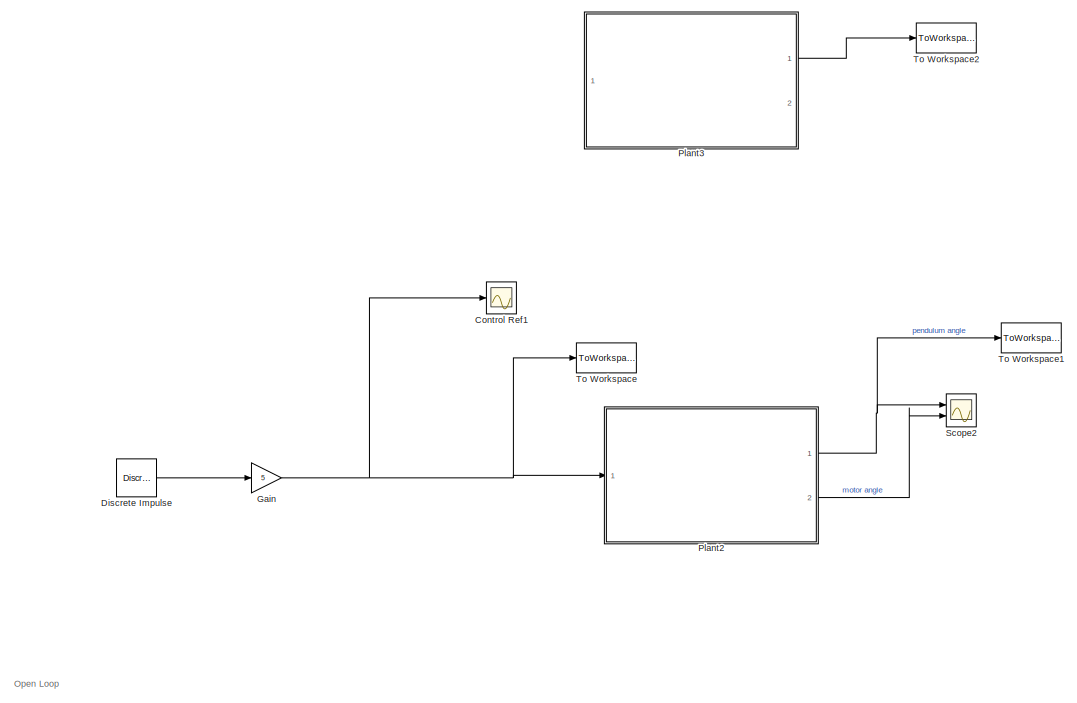
[diagram: root canvas - part 1/4, top center region]
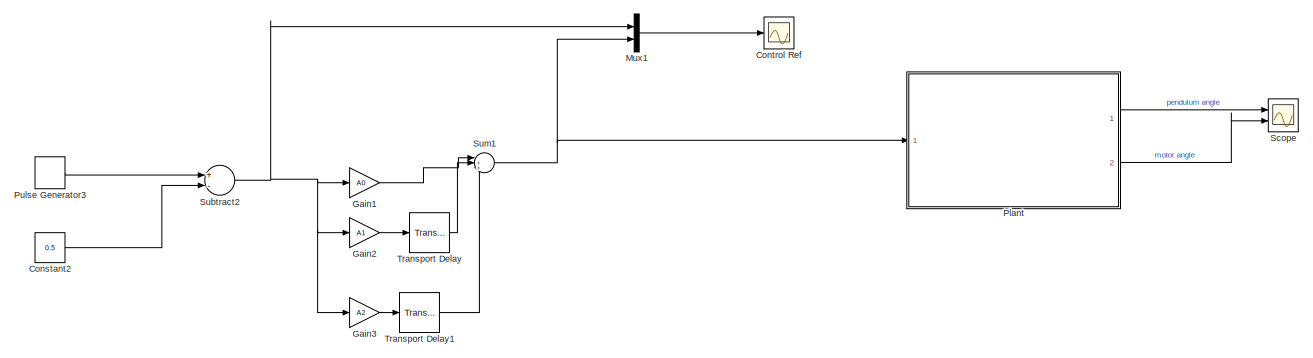
[diagram: root canvas - part 2/4, full width, middle band]
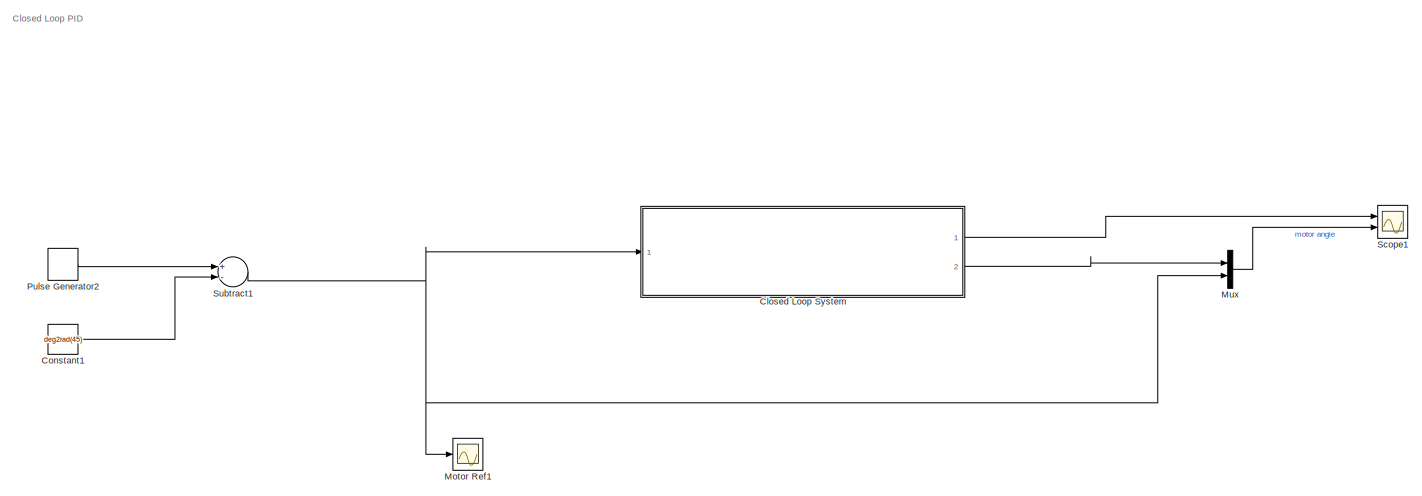
[diagram: root canvas - part 3/4, full width, middle band]
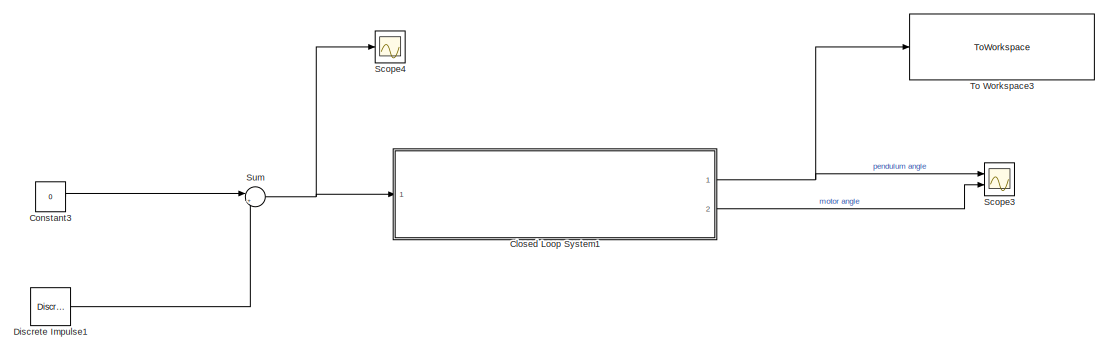
[diagram: root canvas - part 4/4, bottom center region]
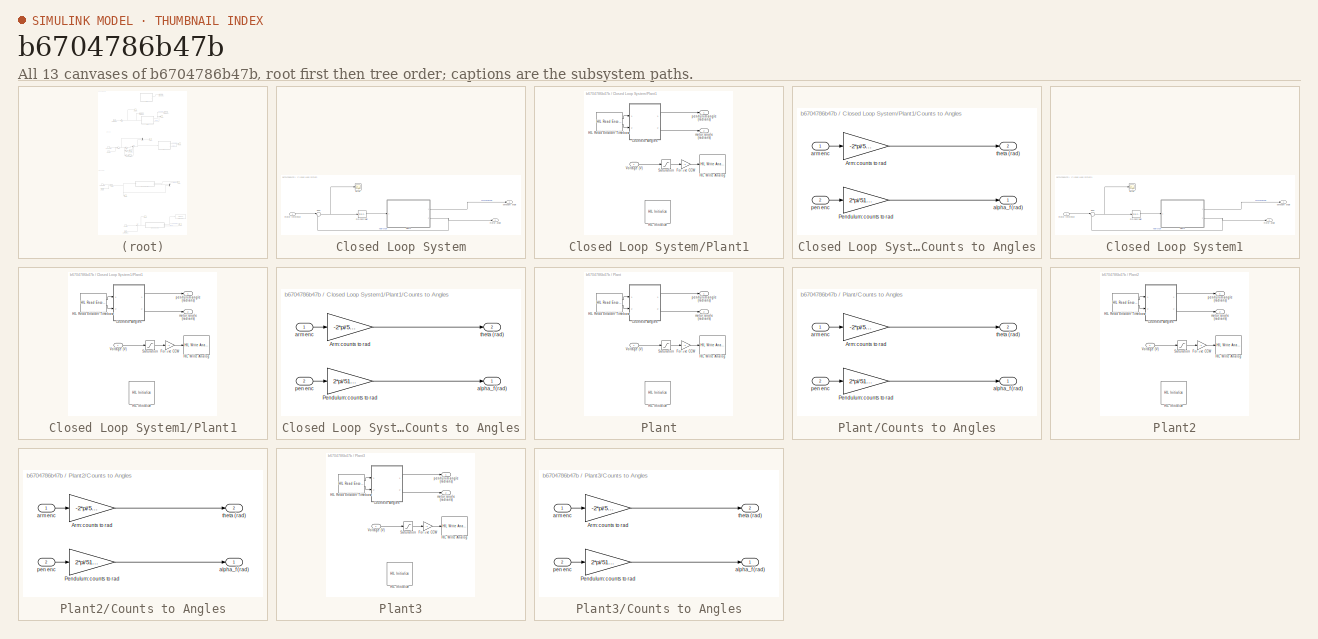
[diagram: thumbnail index - all 13 canvases of the model, root first then tree order]
MODEL slx_b6704786b47b
KIND model
CONFIG AbsTol = auto
CONFIG EnableMultiTasking = on
CONFIG FixedStep = 0.002
CONFIG MaxStep = auto
CONFIG MinStep = auto
CONFIG RelTol = 1e-3
CONFIG SampleTimeConstraint = Unconstrained
CONFIG Solver = ode4
CONFIG SolverName = ode4
CONFIG StartTime = 0.0
CONFIG StopTime = T
BLOCK [SubSystem] Closed Loop System
  Commented = on
  Ports = [1, 2]
  RequestExecContextInheritance = off
BLOCK [Reference] Closed Loop System/PID Controller  REF=simulink/Continuous/PID Controller
  Ports = [1, 1]
  SourceBlock = simulink/Continuous/PID Controller
  SourceProductBaseCode = SL
  SourceProductName = Simulink
  SourceType = PID 1dof
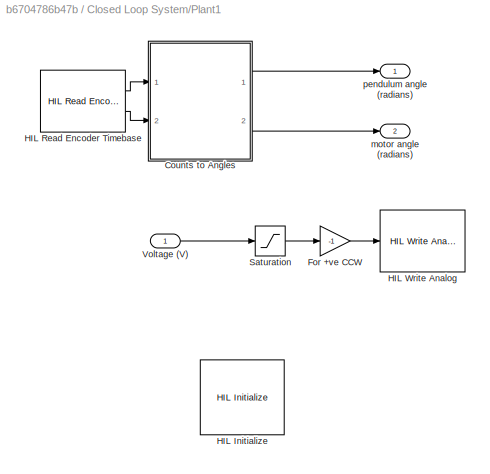
BLOCK [SubSystem] Closed Loop System/Plant1
  Ports = [1, 2]
  RequestExecContextInheritance = off
BLOCK [SubSystem] Closed Loop System/Plant1/Counts to Angles
  Ports = [2, 2]
  RequestExecContextInheritance = off
BLOCK [Gain] Closed Loop System/Plant1/Counts to Angles/Arm: counts to rad
  Gain = -2*pi/512/4
  OutDataTypeStr = Inherit: Inherit via internal rule
  ParamDataTypeStr = Inherit: Inherit via internal rule
  SaturateOnIntegerOverflow = off
BLOCK [Gain] Closed Loop System/Plant1/Counts to Angles/Pendulum: counts to rad
  Gain = 2*pi/512/4
  OutDataTypeStr = Inherit: Inherit via internal rule
  ParamDataTypeStr = Inherit: Inherit via internal rule
  SaturateOnIntegerOverflow = off
BLOCK [Outport] Closed Loop System/Plant1/Counts to Angles/alpha_f (rad)
  IconDisplay = Port number
BLOCK [Inport] Closed Loop System/Plant1/Counts to Angles/arm enc
  IconDisplay = Port number
BLOCK [Inport] Closed Loop System/Plant1/Counts to Angles/pen enc
  IconDisplay = Port number
  Port = 2
BLOCK [Outport] Closed Loop System/Plant1/Counts to Angles/theta (rad)
  IconDisplay = Port number
  Port = 2
BLOCK [Gain] Closed Loop System/Plant1/For +ve CCW
  Gain = -1
  OutDataTypeStr = Inherit: Inherit via internal rule
  ParamDataTypeStr = Inherit: Inherit via internal rule
  SaturateOnIntegerOverflow = off
BLOCK [Reference] Closed Loop System/Plant1/HIL Initialize  REF=quarc_library/Data Acquisition/Generic/Configuration/HIL Initialize
  AttributesFormatString = %<object_name> (%<board_type>-%<board_number>)
  Ports = []
  SourceBlock = quarc_library/Data Acquisition/Generic/Configuration/HIL Initialize
  SourceProductName = QUARC Targets
  SourceType = HIL Initialize
  UserDataPersistent = on
BLOCK [Reference] Closed Loop System/Plant1/HIL Read Encoder Timebase  REF=quarc_library/Data Acquisition/Generic/Timebases/HIL Read Encoder
Timebase
  AttributesFormatString = (%<object_name>)
  Ports = [0, 2]
  SourceBlock = quarc_library/Data Acquisition/Generic/Timebases/HIL Read Encoder\nTimebase
  SourceProductName = QUARC Targets
  SourceType = HIL Read Encoder Timebase
  UserDataPersistent = on
BLOCK [Reference] Closed Loop System/Plant1/HIL Write Analog  REF=quarc_library/Data Acquisition/Generic/Immediate I//O/HIL Write Analog
  AttributesFormatString = (%<object_name>)
  Ports = [1]
  SourceBlock = quarc_library/Data Acquisition/Generic/Immediate I//O/HIL Write Analog
  SourceProductName = QUARC Targets
  SourceType = HIL Write Analog
  UserDataPersistent = on
BLOCK [Saturate] Closed Loop System/Plant1/Saturation
  InputPortMap = u0
  LowerLimit = -10
  Ports = [1, 1]
  UpperLimit = 10
BLOCK [Inport] Closed Loop System/Plant1/Voltage (V)
  IconDisplay = Port number
BLOCK [Outport] Closed Loop System/Plant1/motor angle (radians)
  IconDisplay = Port number
  Port = 2
BLOCK [Outport] Closed Loop System/Plant1/pendulum angle (radians)
  IconDisplay = Port number
BLOCK [Sum] Closed Loop System/Sum
  IconShape = round
  InputSameDT = off
  Inputs = |+-
  OutDataTypeStr = Inherit: Inherit via internal rule
  Ports = [2, 1]
  SaturateOnIntegerOverflow = off
BLOCK [Scope] Closed Loop System/error
  Floating = off
  NumInputPorts = 1
  Ports = [1]
  ScopeSpecificationString = Simulink.scopes.TimeScopeBlockCfg('CurrentConfiguration', extmgr.ConfigurationSet(extmgr.Configuration('Core','General UI',true),extmgr.Configuration('Core','Source UI',true),extmgr.Configuration('Sources','WiredSimulink',true,'DataLoggingVariableName','ScopeData4'),extmgr.Configuration('Visuals','Time Domain',true,'SerializedDisplays',{struct('MinYLimReal','-1.97423','MaxYLimReal','1.9681','YLabe...<+1360ch>
BLOCK [Outport] Closed Loop System/motor angle
  IconDisplay = Port number
  Port = 2
BLOCK [Inport] Closed Loop System/motor reference
  IconDisplay = Port number
BLOCK [Outport] Closed Loop System/pendulum angle
  IconDisplay = Port number
BLOCK [SubSystem] Closed Loop System1
  Ports = [1, 2]
  RequestExecContextInheritance = off
BLOCK [Reference] Closed Loop System1/PID Controller  REF=simulink/Continuous/PID Controller
  Ports = [1, 1]
  SourceBlock = simulink/Continuous/PID Controller
  SourceProductBaseCode = SL
  SourceProductName = Simulink
  SourceType = PID 1dof
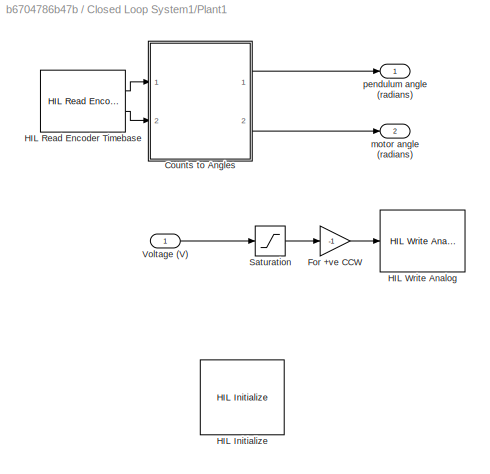
BLOCK [SubSystem] Closed Loop System1/Plant1
  Ports = [1, 2]
  RequestExecContextInheritance = off
BLOCK [SubSystem] Closed Loop System1/Plant1/Counts to Angles
  Ports = [2, 2]
  RequestExecContextInheritance = off
BLOCK [Gain] Closed Loop System1/Plant1/Counts to Angles/Arm: counts to rad
  Gain = -2*pi/512/4
  OutDataTypeStr = Inherit: Inherit via internal rule
  ParamDataTypeStr = Inherit: Inherit via internal rule
  SaturateOnIntegerOverflow = off
BLOCK [Gain] Closed Loop System1/Plant1/Counts to Angles/Pendulum: counts to rad
  Gain = 2*pi/512/4
  OutDataTypeStr = Inherit: Inherit via internal rule
  ParamDataTypeStr = Inherit: Inherit via internal rule
  SaturateOnIntegerOverflow = off
BLOCK [Outport] Closed Loop System1/Plant1/Counts to Angles/alpha_f (rad)
  IconDisplay = Port number
BLOCK [Inport] Closed Loop System1/Plant1/Counts to Angles/arm enc
  IconDisplay = Port number
BLOCK [Inport] Closed Loop System1/Plant1/Counts to Angles/pen enc
  IconDisplay = Port number
  Port = 2
BLOCK [Outport] Closed Loop System1/Plant1/Counts to Angles/theta (rad)
  IconDisplay = Port number
  Port = 2
BLOCK [Gain] Closed Loop System1/Plant1/For +ve CCW
  Gain = -1
  OutDataTypeStr = Inherit: Inherit via internal rule
  ParamDataTypeStr = Inherit: Inherit via internal rule
  SaturateOnIntegerOverflow = off
BLOCK [Reference] Closed Loop System1/Plant1/HIL Initialize  REF=quarc_library/Data Acquisition/Generic/Configuration/HIL Initialize
  AttributesFormatString = %<object_name> (%<board_type>-%<board_number>)
  Ports = []
  SourceBlock = quarc_library/Data Acquisition/Generic/Configuration/HIL Initialize
  SourceProductName = QUARC Targets
  SourceType = HIL Initialize
  UserDataPersistent = on
BLOCK [Reference] Closed Loop System1/Plant1/HIL Read Encoder Timebase  REF=quarc_library/Data Acquisition/Generic/Timebases/HIL Read Encoder
Timebase
  AttributesFormatString = (%<object_name>)
  Ports = [0, 2]
  SourceBlock = quarc_library/Data Acquisition/Generic/Timebases/HIL Read Encoder\nTimebase
  SourceProductName = QUARC Targets
  SourceType = HIL Read Encoder Timebase
  UserDataPersistent = on
BLOCK [Reference] Closed Loop System1/Plant1/HIL Write Analog  REF=quarc_library/Data Acquisition/Generic/Immediate I//O/HIL Write Analog
  AttributesFormatString = (%<object_name>)
  Ports = [1]
  SourceBlock = quarc_library/Data Acquisition/Generic/Immediate I//O/HIL Write Analog
  SourceProductName = QUARC Targets
  SourceType = HIL Write Analog
  UserDataPersistent = on
BLOCK [Saturate] Closed Loop System1/Plant1/Saturation
  InputPortMap = u0
  LowerLimit = -10
  Ports = [1, 1]
  UpperLimit = 10
BLOCK [Inport] Closed Loop System1/Plant1/Voltage (V)
  IconDisplay = Port number
BLOCK [Outport] Closed Loop System1/Plant1/motor angle (radians)
  IconDisplay = Port number
  Port = 2
BLOCK [Outport] Closed Loop System1/Plant1/pendulum angle (radians)
  IconDisplay = Port number
BLOCK [Sum] Closed Loop System1/Sum
  IconShape = round
  InputSameDT = off
  Inputs = |+-
  OutDataTypeStr = Inherit: Inherit via internal rule
  Ports = [2, 1]
  SaturateOnIntegerOverflow = off
BLOCK [Scope] Closed Loop System1/error
  Floating = off
  NumInputPorts = 1
  Ports = [1]
  ScopeSpecificationString = Simulink.scopes.TimeScopeBlockCfg('CurrentConfiguration', extmgr.ConfigurationSet(extmgr.Configuration('Core','General UI',true),extmgr.Configuration('Core','Source UI',true),extmgr.Configuration('Sources','WiredSimulink',true,'DataLoggingVariableName','ScopeData4'),extmgr.Configuration('Visuals','Time Domain',true,'SerializedDisplays',{struct('MinYLimReal','-1.97423','MaxYLimReal','1.9681','YLabe...<+1360ch>
BLOCK [Outport] Closed Loop System1/motor angle
  IconDisplay = Port number
  Port = 2
BLOCK [Inport] Closed Loop System1/motor reference
  IconDisplay = Port number
BLOCK [Outport] Closed Loop System1/pendulum angle
  IconDisplay = Port number
BLOCK [Constant] Constant1
  Commented = on
  Value = deg2rad(45)
BLOCK [Constant] Constant2
  Commented = on
  Value = 0.5
BLOCK [Constant] Constant3
  Value = 0
BLOCK [Scope] Control Ref
  Commented = on
  Floating = off
  NumInputPorts = 1
  Ports = [1]
  ScopeSpecificationString = Simulink.scopes.TimeScopeBlockCfg('CurrentConfiguration', extmgr.ConfigurationSet(extmgr.Configuration('Core','General UI',true),extmgr.Configuration('Core','Source UI',true),extmgr.Configuration('Sources','WiredSimulink',true,'DataLoggingVariableName','ScopeData1'),extmgr.Configuration('Visuals','Time Domain',true,'SerializedDisplays',{struct('MinYLimReal','-0.625','MaxYLimReal','0.625','YLabelRe...<+1721ch>
BLOCK [Scope] Control Ref1
  Commented = on
  Floating = off
  NumInputPorts = 1
  Ports = [1]
  ScopeSpecificationString = Simulink.scopes.TimeScopeBlockCfg('CurrentConfiguration', extmgr.ConfigurationSet(extmgr.Configuration('Core','General UI',true),extmgr.Configuration('Core','Source UI',true),extmgr.Configuration('Sources','WiredSimulink',true,'DataLoggingVariableName','ScopeData5'),extmgr.Configuration('Visuals','Time Domain',true,'SerializedDisplays',{struct('MinYLimReal','-0.625','MaxYLimReal','5.625','YLabelRe...<+1676ch>
BLOCK [Reference] Discrete Impulse  REF=dspsrcs4/Discrete 
Impulse
  Commented = on
  Ports = [0, 1]
  SourceBlock = dspsrcs4/Discrete \nImpulse
  SourceProductBaseCode = DS
  SourceProductName = DSP System Toolbox
  SourceType = Discrete Impulse
BLOCK [Reference] Discrete Impulse1  REF=dspsrcs4/Discrete 
Impulse
  Ports = [0, 1]
  SourceBlock = dspsrcs4/Discrete \nImpulse
  SourceProductBaseCode = DS
  SourceProductName = DSP System Toolbox
  SourceType = Discrete Impulse
BLOCK [Gain] Gain
  Commented = on
  Gain = 5
  OutDataTypeStr = Inherit: Inherit via internal rule
  ParamDataTypeStr = Inherit: Inherit via internal rule
  SaturateOnIntegerOverflow = off
BLOCK [Gain] Gain1
  Commented = on
  Gain = A0
  OutDataTypeStr = Inherit: Inherit via internal rule
  ParamDataTypeStr = Inherit: Inherit via internal rule
  SaturateOnIntegerOverflow = off
BLOCK [Gain] Gain2
  Commented = on
  Gain = A1
  OutDataTypeStr = Inherit: Inherit via internal rule
  ParamDataTypeStr = Inherit: Inherit via internal rule
  SaturateOnIntegerOverflow = off
BLOCK [Gain] Gain3
  Commented = on
  Gain = A2
  OutDataTypeStr = Inherit: Inherit via internal rule
  ParamDataTypeStr = Inherit: Inherit via internal rule
  SaturateOnIntegerOverflow = off
BLOCK [Scope] Motor Ref1
  Commented = on
  Floating = off
  NumInputPorts = 1
  Ports = [1]
  ScopeSpecificationString = Simulink.scopes.TimeScopeBlockCfg('CurrentConfiguration', extmgr.ConfigurationSet(extmgr.Configuration('Core','General UI',true),extmgr.Configuration('Core','Source UI',true),extmgr.Configuration('Sources','WiredSimulink',true,'DataLoggingVariableName','ScopeData2'),extmgr.Configuration('Visuals','Time Domain',true,'SerializedDisplays',{struct('MinYLimReal','-0.98175','MaxYLimReal','0.98175','YLab...<+1693ch>
BLOCK [Mux] Mux
  Commented = on
  DisplayOption = bar
  Inputs = 2
  Ports = [2, 1]
BLOCK [Mux] Mux1
  Commented = on
  DisplayOption = bar
  Inputs = 2
  Ports = [2, 1]
BLOCK [SubSystem] Plant
  Commented = on
  Ports = [1, 2]
  RequestExecContextInheritance = off
BLOCK [SubSystem] Plant/Counts to Angles
  Ports = [2, 2]
  RequestExecContextInheritance = off
BLOCK [Gain] Plant/Counts to Angles/Arm: counts to rad
  Gain = -2*pi/512/4
  OutDataTypeStr = Inherit: Inherit via internal rule
  ParamDataTypeStr = Inherit: Inherit via internal rule
  SaturateOnIntegerOverflow = off
BLOCK [Gain] Plant/Counts to Angles/Pendulum: counts to rad
  Gain = 2*pi/512/4
  OutDataTypeStr = Inherit: Inherit via internal rule
  ParamDataTypeStr = Inherit: Inherit via internal rule
  SaturateOnIntegerOverflow = off
BLOCK [Outport] Plant/Counts to Angles/alpha_f (rad)
  IconDisplay = Port number
BLOCK [Inport] Plant/Counts to Angles/arm enc
  IconDisplay = Port number
BLOCK [Inport] Plant/Counts to Angles/pen enc
  IconDisplay = Port number
  Port = 2
BLOCK [Outport] Plant/Counts to Angles/theta (rad)
  IconDisplay = Port number
  Port = 2
BLOCK [Gain] Plant/For +ve CCW
  Gain = -1
  OutDataTypeStr = Inherit: Inherit via internal rule
  ParamDataTypeStr = Inherit: Inherit via internal rule
  SaturateOnIntegerOverflow = off
BLOCK [Reference] Plant/HIL Initialize  REF=quarc_library/Data Acquisition/Generic/Configuration/HIL Initialize
  AttributesFormatString = %<object_name> (%<board_type>-%<board_number>)
  Ports = []
  SourceBlock = quarc_library/Data Acquisition/Generic/Configuration/HIL Initialize
  SourceProductName = QUARC Targets
  SourceType = HIL Initialize
  UserDataPersistent = on
BLOCK [Reference] Plant/HIL Read Encoder Timebase  REF=quarc_library/Data Acquisition/Generic/Timebases/HIL Read Encoder
Timebase
  AttributesFormatString = (%<object_name>)
  Ports = [0, 2]
  SourceBlock = quarc_library/Data Acquisition/Generic/Timebases/HIL Read Encoder\nTimebase
  SourceProductName = QUARC Targets
  SourceType = HIL Read Encoder Timebase
  UserDataPersistent = on
BLOCK [Reference] Plant/HIL Write Analog  REF=quarc_library/Data Acquisition/Generic/Immediate I//O/HIL Write Analog
  AttributesFormatString = (%<object_name>)
  Ports = [1]
  SourceBlock = quarc_library/Data Acquisition/Generic/Immediate I//O/HIL Write Analog
  SourceProductName = QUARC Targets
  SourceType = HIL Write Analog
  UserDataPersistent = on
BLOCK [Saturate] Plant/Saturation
  InputPortMap = u0
  LowerLimit = -10
  Ports = [1, 1]
  UpperLimit = 10
BLOCK [Inport] Plant/Voltage (V)
  IconDisplay = Port number
BLOCK [Outport] Plant/motor angle (radians)
  IconDisplay = Port number
  Port = 2
BLOCK [Outport] Plant/pendulum angle (radians)
  IconDisplay = Port number
BLOCK [SubSystem] Plant2
  Commented = on
  Ports = [1, 2]
  RequestExecContextInheritance = off
BLOCK [SubSystem] Plant2/Counts to Angles
  Ports = [2, 2]
  RequestExecContextInheritance = off
BLOCK [Gain] Plant2/Counts to Angles/Arm: counts to rad
  Gain = -2*pi/512/4
  OutDataTypeStr = Inherit: Inherit via internal rule
  ParamDataTypeStr = Inherit: Inherit via internal rule
  SaturateOnIntegerOverflow = off
BLOCK [Gain] Plant2/Counts to Angles/Pendulum: counts to rad
  Gain = 2*pi/512/4
  OutDataTypeStr = Inherit: Inherit via internal rule
  ParamDataTypeStr = Inherit: Inherit via internal rule
  SaturateOnIntegerOverflow = off
BLOCK [Outport] Plant2/Counts to Angles/alpha_f (rad)
  IconDisplay = Port number
BLOCK [Inport] Plant2/Counts to Angles/arm enc
  IconDisplay = Port number
BLOCK [Inport] Plant2/Counts to Angles/pen enc
  IconDisplay = Port number
  Port = 2
BLOCK [Outport] Plant2/Counts to Angles/theta (rad)
  IconDisplay = Port number
  Port = 2
BLOCK [Gain] Plant2/For +ve CCW
  Gain = -1
  OutDataTypeStr = Inherit: Inherit via internal rule
  ParamDataTypeStr = Inherit: Inherit via internal rule
  SaturateOnIntegerOverflow = off
BLOCK [Reference] Plant2/HIL Initialize  REF=quarc_library/Data Acquisition/Generic/Configuration/HIL Initialize
  AttributesFormatString = %<object_name> (%<board_type>-%<board_number>)
  Ports = []
  SourceBlock = quarc_library/Data Acquisition/Generic/Configuration/HIL Initialize
  SourceProductName = QUARC Targets
  SourceType = HIL Initialize
  UserDataPersistent = on
BLOCK [Reference] Plant2/HIL Read Encoder Timebase  REF=quarc_library/Data Acquisition/Generic/Timebases/HIL Read Encoder
Timebase
  AttributesFormatString = (%<object_name>)
  Ports = [0, 2]
  SourceBlock = quarc_library/Data Acquisition/Generic/Timebases/HIL Read Encoder\nTimebase
  SourceProductName = QUARC Targets
  SourceType = HIL Read Encoder Timebase
  UserDataPersistent = on
BLOCK [Reference] Plant2/HIL Write Analog  REF=quarc_library/Data Acquisition/Generic/Immediate I//O/HIL Write Analog
  AttributesFormatString = (%<object_name>)
  Ports = [1]
  SourceBlock = quarc_library/Data Acquisition/Generic/Immediate I//O/HIL Write Analog
  SourceProductName = QUARC Targets
  SourceType = HIL Write Analog
  UserDataPersistent = on
BLOCK [Saturate] Plant2/Saturation
  InputPortMap = u0
  LowerLimit = -10
  Ports = [1, 1]
  UpperLimit = 10
BLOCK [Inport] Plant2/Voltage (V)
  IconDisplay = Port number
BLOCK [Outport] Plant2/motor angle (radians)
  IconDisplay = Port number
  Port = 2
BLOCK [Outport] Plant2/pendulum angle (radians)
  IconDisplay = Port number
BLOCK [SubSystem] Plant3
  Commented = on
  Ports = [1, 2]
  RequestExecContextInheritance = off
BLOCK [SubSystem] Plant3/Counts to Angles
  Ports = [2, 2]
  RequestExecContextInheritance = off
BLOCK [Gain] Plant3/Counts to Angles/Arm: counts to rad
  Gain = -2*pi/512/4
  OutDataTypeStr = Inherit: Inherit via internal rule
  ParamDataTypeStr = Inherit: Inherit via internal rule
  SaturateOnIntegerOverflow = off
BLOCK [Gain] Plant3/Counts to Angles/Pendulum: counts to rad
  Gain = 2*pi/512/4
  OutDataTypeStr = Inherit: Inherit via internal rule
  ParamDataTypeStr = Inherit: Inherit via internal rule
  SaturateOnIntegerOverflow = off
BLOCK [Outport] Plant3/Counts to Angles/alpha_f (rad)
  IconDisplay = Port number
BLOCK [Inport] Plant3/Counts to Angles/arm enc
  IconDisplay = Port number
BLOCK [Inport] Plant3/Counts to Angles/pen enc
  IconDisplay = Port number
  Port = 2
BLOCK [Outport] Plant3/Counts to Angles/theta (rad)
  IconDisplay = Port number
  Port = 2
BLOCK [Gain] Plant3/For +ve CCW
  Gain = -1
  OutDataTypeStr = Inherit: Inherit via internal rule
  ParamDataTypeStr = Inherit: Inherit via internal rule
  SaturateOnIntegerOverflow = off
BLOCK [Reference] Plant3/HIL Initialize  REF=quarc_library/Data Acquisition/Generic/Configuration/HIL Initialize
  AttributesFormatString = %<object_name> (%<board_type>-%<board_number>)
  Ports = []
  SourceBlock = quarc_library/Data Acquisition/Generic/Configuration/HIL Initialize
  SourceProductName = QUARC Targets
  SourceType = HIL Initialize
  UserDataPersistent = on
BLOCK [Reference] Plant3/HIL Read Encoder Timebase  REF=quarc_library/Data Acquisition/Generic/Timebases/HIL Read Encoder
Timebase
  AttributesFormatString = (%<object_name>)
  Ports = [0, 2]
  SourceBlock = quarc_library/Data Acquisition/Generic/Timebases/HIL Read Encoder\nTimebase
  SourceProductName = QUARC Targets
  SourceType = HIL Read Encoder Timebase
  UserDataPersistent = on
BLOCK [Reference] Plant3/HIL Write Analog  REF=quarc_library/Data Acquisition/Generic/Immediate I//O/HIL Write Analog
  AttributesFormatString = (%<object_name>)
  Ports = [1]
  SourceBlock = quarc_library/Data Acquisition/Generic/Immediate I//O/HIL Write Analog
  SourceProductName = QUARC Targets
  SourceType = HIL Write Analog
  UserDataPersistent = on
BLOCK [Saturate] Plant3/Saturation
  InputPortMap = u0
  LowerLimit = -10
  Ports = [1, 1]
  UpperLimit = 10
BLOCK [Inport] Plant3/Voltage (V)
  IconDisplay = Port number
BLOCK [Outport] Plant3/motor angle (radians)
  IconDisplay = Port number
  Port = 2
BLOCK [Outport] Plant3/pendulum angle (radians)
  IconDisplay = Port number
BLOCK [DiscretePulseGenerator] Pulse Generator2
  Amplitude = 2 * deg2rad(45)
  Commented = on
  Period = 10
  Ports = [0, 1]
  PulseType = Time based
  PulseWidth = 50
BLOCK [DiscretePulseGenerator] Pulse Generator3
  Commented = on
  Period = 5
  Ports = [0, 1]
  PulseType = Time based
  PulseWidth = 50
BLOCK [Scope] Scope
  Commented = on
  Floating = off
  NumInputPorts = 2
  Ports = [2]
  ScopeSpecificationString = Simulink.scopes.TimeScopeBlockCfg('CurrentConfiguration', extmgr.ConfigurationSet(extmgr.Configuration('Core','General UI',true),extmgr.Configuration('Core','Source UI',true),extmgr.Configuration('Sources','WiredSimulink',true),extmgr.Configuration('Visuals','Time Domain',true,'SerializedDisplays',{struct('MinYLimReal','-0.08935','MaxYLimReal','0.09856','YLabelReal','','MinYLimMag','0.00000','MaxY...<+2010ch>
BLOCK [Scope] Scope1
  Commented = on
  Floating = off
  NumInputPorts = 2
  Ports = [2]
  ScopeSpecificationString = Simulink.scopes.TimeScopeBlockCfg('CurrentConfiguration', extmgr.ConfigurationSet(extmgr.Configuration('Core','General UI',true),extmgr.Configuration('Core','Source UI',true),extmgr.Configuration('Sources','WiredSimulink',true,'DataLoggingVariableName','ScopeData3'),extmgr.Configuration('Visuals','Time Domain',true,'SerializedDisplays',{struct('MinYLimReal','-0.55645','MaxYLimReal','0.55952','YLab...<+2067ch>
BLOCK [Scope] Scope2
  Commented = on
  Floating = off
  NumInputPorts = 2
  Ports = [2]
  ScopeSpecificationString = Simulink.scopes.TimeScopeBlockCfg('CurrentConfiguration', extmgr.ConfigurationSet(extmgr.Configuration('Core','General UI',true),extmgr.Configuration('Core','Source UI',true),extmgr.Configuration('Sources','WiredSimulink',true,'DataLoggingVariableName','ScopeData6'),extmgr.Configuration('Visuals','Time Domain',true,'SerializedDisplays',{struct('MinYLimReal','-1.15701','MaxYLimReal','1.27052','YLab...<+2049ch>
BLOCK [Scope] Scope3
  Floating = off
  NumInputPorts = 2
  Ports = [2]
  ScopeSpecificationString = Simulink.scopes.TimeScopeBlockCfg('CurrentConfiguration', extmgr.ConfigurationSet(extmgr.Configuration('Core','General UI',true),extmgr.Configuration('Core','Source UI',true),extmgr.Configuration('Sources','WiredSimulink',true,'DataLoggingVariableName','ScopeData1'),extmgr.Configuration('Visuals','Time Domain',true,'SerializedDisplays',{struct('MinYLimReal','-0.40842','MaxYLimReal','0.45444','YLab...<+2049ch>
BLOCK [Scope] Scope4
  Floating = off
  NumInputPorts = 1
  Ports = [1]
  ScopeSpecificationString = Simulink.scopes.TimeScopeBlockCfg('CurrentConfiguration', extmgr.ConfigurationSet(extmgr.Configuration('Core','General UI',true),extmgr.Configuration('Core','Source UI',true),extmgr.Configuration('Sources','WiredSimulink',true,'DataLoggingVariableName','ScopeData2'),extmgr.Configuration('Visuals','Time Domain',true,'SerializedDisplays',{struct('MinYLimReal','-0.125','MaxYLimReal','1.125','YLabelRe...<+1350ch>
BLOCK [Sum] Subtract1
  Commented = on
  InputSameDT = off
  Inputs = +-
  OutDataTypeStr = Inherit: Inherit via internal rule
  Ports = [2, 1]
  SaturateOnIntegerOverflow = off
BLOCK [Sum] Subtract2
  Commented = on
  InputSameDT = off
  Inputs = +-
  OutDataTypeStr = Inherit: Inherit via internal rule
  Ports = [2, 1]
  SaturateOnIntegerOverflow = off
BLOCK [Sum] Sum
  IconShape = round
  InputSameDT = off
  Inputs = |++
  OutDataTypeStr = Inherit: Inherit via internal rule
  Ports = [2, 1]
  SaturateOnIntegerOverflow = off
BLOCK [Sum] Sum1
  Commented = on
  IconShape = round
  InputSameDT = off
  Inputs = |+++
  OutDataTypeStr = Inherit: Inherit via internal rule
  Ports = [3, 1]
  SaturateOnIntegerOverflow = off
BLOCK [ToWorkspace] To Workspace
  Commented = on
  FixptAsFi = on
  MaxDataPoints = inf
  Ports = [1]
  SampleTime = 0.002
  Save2DSignal = 2-D array (concatenate along first dimension)
  VariableName = U
BLOCK [ToWorkspace] To Workspace1
  Commented = on
  FixptAsFi = on
  MaxDataPoints = inf
  Ports = [1]
  SampleTime = 0.002
  Save2DSignal = 2-D array (concatenate along first dimension)
  VariableName = Y
BLOCK [ToWorkspace] To Workspace2
  Commented = on
  FixptAsFi = on
  MaxDataPoints = inf
  Ports = [1]
  SampleTime = 0.002
  Save2DSignal = 2-D array (concatenate along first dimension)
  VariableName = Y1
BLOCK [ToWorkspace] To Workspace3
  FixptAsFi = on
  MaxDataPoints = inf
  Ports = [1]
  SampleTime = -1
  Save2DSignal = 3-D array (concatenate along third dimension)
  VariableName = response
BLOCK [TransportDelay] Transport Delay
  Commented = on
  DelayTime = t1
  Ports = [1, 1]
BLOCK [TransportDelay] Transport Delay1
  Commented = on
  DelayTime = t2
  Ports = [1, 1]
ANNOTATION (root): Closed Loop PID
ANNOTATION (root): Open Loop
LINE Closed Loop System/PID Controller:1 -> Closed Loop System/Plant1:1
LINE Closed Loop System/Plant1/Counts to Angles/Arm: counts to rad:1 -> Closed Loop System/Plant1/Counts to Angles/theta (rad):1
LINE Closed Loop System/Plant1/Counts to Angles/Pendulum: counts to rad:1 -> Closed Loop System/Plant1/Counts to Angles/alpha_f (rad):1
LINE Closed Loop System/Plant1/Counts to Angles/arm enc:1 -> Closed Loop System/Plant1/Counts to Angles/Arm: counts to rad:1
LINE Closed Loop System/Plant1/Counts to Angles/pen enc:1 -> Closed Loop System/Plant1/Counts to Angles/Pendulum: counts to rad:1
LINE Closed Loop System/Plant1/Counts to Angles:1 -> Closed Loop System/Plant1/pendulum angle (radians):1
LINE Closed Loop System/Plant1/Counts to Angles:2 -> Closed Loop System/Plant1/motor angle (radians):1
LINE Closed Loop System/Plant1/For +ve CCW:1 -> Closed Loop System/Plant1/HIL Write Analog:1
LINE Closed Loop System/Plant1/HIL Read Encoder Timebase:1 -> Closed Loop System/Plant1/Counts to Angles:1
LINE Closed Loop System/Plant1/HIL Read Encoder Timebase:2 -> Closed Loop System/Plant1/Counts to Angles:2
LINE Closed Loop System/Plant1/Saturation:1 -> Closed Loop System/Plant1/For +ve CCW:1
LINE Closed Loop System/Plant1/Voltage (V):1 -> Closed Loop System/Plant1/Saturation:1
LINE Closed Loop System/Plant1:1 -> Closed Loop System/pendulum angle:1
NET Closed Loop System/Plant1:2 -> Closed Loop System/Sum:2, Closed Loop System/motor angle:1
NET Closed Loop System/Sum:1 -> Closed Loop System/PID Controller:1, Closed Loop System/error:1
LINE Closed Loop System/motor reference:1 -> Closed Loop System/Sum:1
LINE Closed Loop System1/PID Controller:1 -> Closed Loop System1/Plant1:1
LINE Closed Loop System1/Plant1/Counts to Angles/Arm: counts to rad:1 -> Closed Loop System1/Plant1/Counts to Angles/theta (rad):1
LINE Closed Loop System1/Plant1/Counts to Angles/Pendulum: counts to rad:1 -> Closed Loop System1/Plant1/Counts to Angles/alpha_f (rad):1
LINE Closed Loop System1/Plant1/Counts to Angles/arm enc:1 -> Closed Loop System1/Plant1/Counts to Angles/Arm: counts to rad:1
LINE Closed Loop System1/Plant1/Counts to Angles/pen enc:1 -> Closed Loop System1/Plant1/Counts to Angles/Pendulum: counts to rad:1
LINE Closed Loop System1/Plant1/Counts to Angles:1 -> Closed Loop System1/Plant1/pendulum angle (radians):1
LINE Closed Loop System1/Plant1/Counts to Angles:2 -> Closed Loop System1/Plant1/motor angle (radians):1
LINE Closed Loop System1/Plant1/For +ve CCW:1 -> Closed Loop System1/Plant1/HIL Write Analog:1
LINE Closed Loop System1/Plant1/HIL Read Encoder Timebase:1 -> Closed Loop System1/Plant1/Counts to Angles:1
LINE Closed Loop System1/Plant1/HIL Read Encoder Timebase:2 -> Closed Loop System1/Plant1/Counts to Angles:2
LINE Closed Loop System1/Plant1/Saturation:1 -> Closed Loop System1/Plant1/For +ve CCW:1
LINE Closed Loop System1/Plant1/Voltage (V):1 -> Closed Loop System1/Plant1/Saturation:1
LINE Closed Loop System1/Plant1:1 -> Closed Loop System1/pendulum angle:1
NET Closed Loop System1/Plant1:2 -> Closed Loop System1/Sum:2, Closed Loop System1/motor angle:1
NET Closed Loop System1/Sum:1 -> Closed Loop System1/PID Controller:1, Closed Loop System1/error:1
LINE Closed Loop System1/motor reference:1 -> Closed Loop System1/Sum:1
NET Closed Loop System1:1 -> Scope3:1, To Workspace3:1
LINE Closed Loop System1:2 -> Scope3:2
LINE Closed Loop System:1 -> Scope1:1
LINE Closed Loop System:2 -> Mux:1
LINE Constant1:1 -> Subtract1:2
LINE Constant2:1 -> Subtract2:2
LINE Constant3:1 -> Sum:1
LINE Discrete Impulse1:1 -> Sum:2
LINE Discrete Impulse:1 -> Gain:1
LINE Gain1:1 -> Sum1:1
LINE Gain2:1 -> Transport Delay:1
LINE Gain3:1 -> Transport Delay1:1
NET Gain:1 -> Control Ref1:1, Plant2:1, To Workspace:1
LINE Mux1:1 -> Control Ref:1
LINE Mux:1 -> Scope1:2
LINE Plant/Counts to Angles/Arm: counts to rad:1 -> Plant/Counts to Angles/theta (rad):1
LINE Plant/Counts to Angles/Pendulum: counts to rad:1 -> Plant/Counts to Angles/alpha_f (rad):1
LINE Plant/Counts to Angles/arm enc:1 -> Plant/Counts to Angles/Arm: counts to rad:1
LINE Plant/Counts to Angles/pen enc:1 -> Plant/Counts to Angles/Pendulum: counts to rad:1
LINE Plant/Counts to Angles:1 -> Plant/pendulum angle (radians):1
LINE Plant/Counts to Angles:2 -> Plant/motor angle (radians):1
LINE Plant/For +ve CCW:1 -> Plant/HIL Write Analog:1
LINE Plant/HIL Read Encoder Timebase:1 -> Plant/Counts to Angles:1
LINE Plant/HIL Read Encoder Timebase:2 -> Plant/Counts to Angles:2
LINE Plant/Saturation:1 -> Plant/For +ve CCW:1
LINE Plant/Voltage (V):1 -> Plant/Saturation:1
LINE Plant2/Counts to Angles/Arm: counts to rad:1 -> Plant2/Counts to Angles/theta (rad):1
LINE Plant2/Counts to Angles/Pendulum: counts to rad:1 -> Plant2/Counts to Angles/alpha_f (rad):1
LINE Plant2/Counts to Angles/arm enc:1 -> Plant2/Counts to Angles/Arm: counts to rad:1
LINE Plant2/Counts to Angles/pen enc:1 -> Plant2/Counts to Angles/Pendulum: counts to rad:1
LINE Plant2/Counts to Angles:1 -> Plant2/pendulum angle (radians):1
LINE Plant2/Counts to Angles:2 -> Plant2/motor angle (radians):1
LINE Plant2/For +ve CCW:1 -> Plant2/HIL Write Analog:1
LINE Plant2/HIL Read Encoder Timebase:1 -> Plant2/Counts to Angles:1
LINE Plant2/HIL Read Encoder Timebase:2 -> Plant2/Counts to Angles:2
LINE Plant2/Saturation:1 -> Plant2/For +ve CCW:1
LINE Plant2/Voltage (V):1 -> Plant2/Saturation:1
NET Plant2:1 -> Scope2:1, To Workspace1:1
LINE Plant2:2 -> Scope2:2
LINE Plant3/Counts to Angles/Arm: counts to rad:1 -> Plant3/Counts to Angles/theta (rad):1
LINE Plant3/Counts to Angles/Pendulum: counts to rad:1 -> Plant3/Counts to Angles/alpha_f (rad):1
LINE Plant3/Counts to Angles/arm enc:1 -> Plant3/Counts to Angles/Arm: counts to rad:1
LINE Plant3/Counts to Angles/pen enc:1 -> Plant3/Counts to Angles/Pendulum: counts to rad:1
LINE Plant3/Counts to Angles:1 -> Plant3/pendulum angle (radians):1
LINE Plant3/Counts to Angles:2 -> Plant3/motor angle (radians):1
LINE Plant3/For +ve CCW:1 -> Plant3/HIL Write Analog:1
LINE Plant3/HIL Read Encoder Timebase:1 -> Plant3/Counts to Angles:1
LINE Plant3/HIL Read Encoder Timebase:2 -> Plant3/Counts to Angles:2
LINE Plant3/Saturation:1 -> Plant3/For +ve CCW:1
LINE Plant3/Voltage (V):1 -> Plant3/Saturation:1
LINE Plant3:1 -> To Workspace2:1
LINE Plant:1 -> Scope:1
LINE Plant:2 -> Scope:2
LINE Pulse Generator2:1 -> Subtract1:1
LINE Pulse Generator3:1 -> Subtract2:1
NET Subtract1:1 -> Closed Loop System:1, Motor Ref1:1, Mux:2
NET Subtract2:1 -> Gain1:1, Gain2:1, Gain3:1, Mux1:1
NET Sum1:1 -> Mux1:2, Plant:1
NET Sum:1 -> Closed Loop System1:1, Scope4:1
LINE Transport Delay1:1 -> Sum1:3
LINE Transport Delay:1 -> Sum1:2
note: NET lines group one-source signal fan-out (src -> all destinations, sorted); 1:1 wires keep LINE
